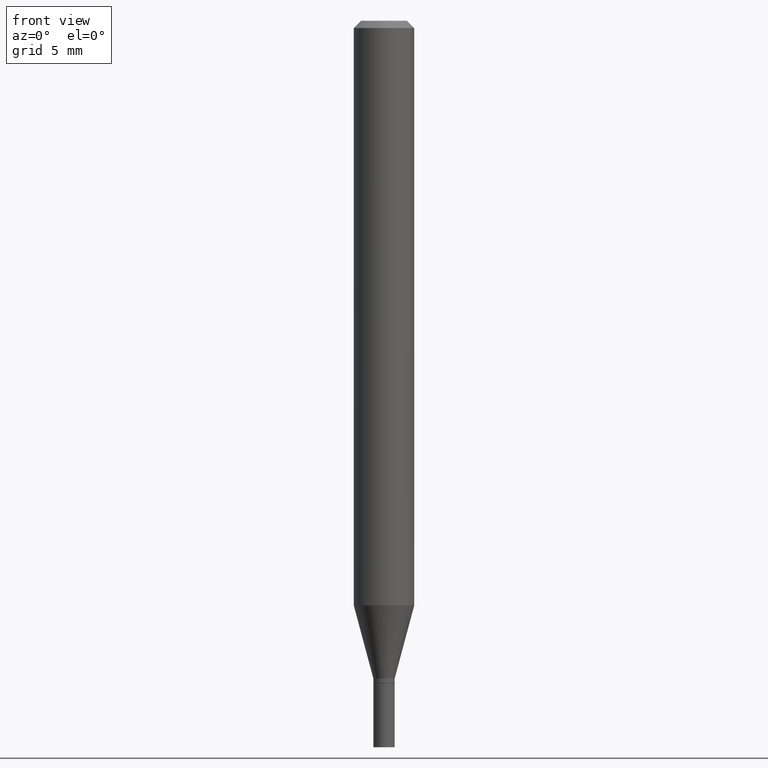
[diagram: clean part render]
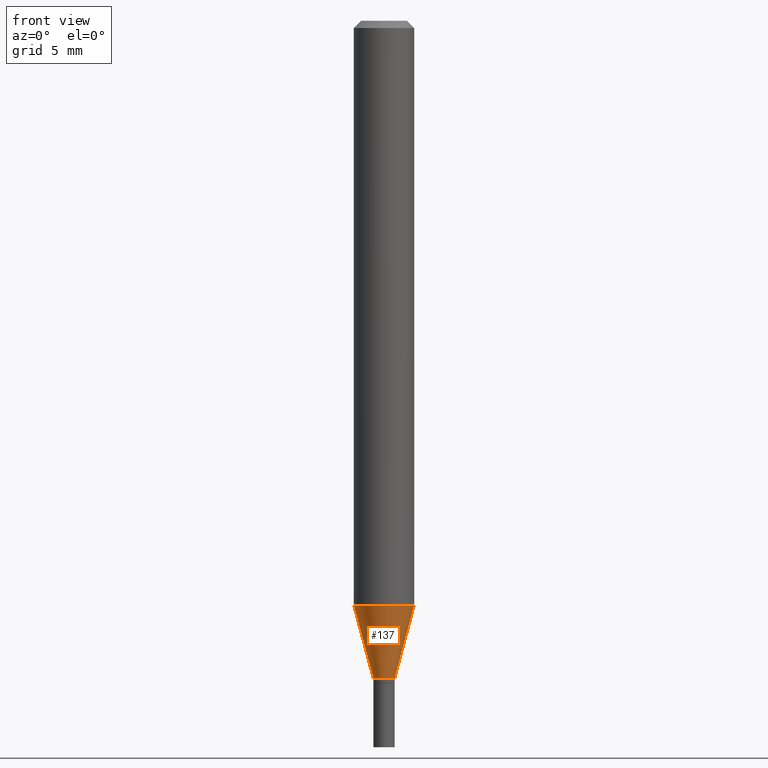
[diagram: same view with one face highlighted and labeled with its STEP entity id]
A machine part, front view. The second image highlights one B-rep face of the part: STEP entity #137.
In plain terms, the highlighted conical surface has half-angle 15 deg.
Its self-contained STEP definition (entity closure, byte-faithful):
#30 = DIRECTION ( 'NONE',  ( 1.000000000000000000, -6.982962677686270655E-15, 0.000000000000000000 ) ) ;
#36 = DIRECTION ( 'NONE',  ( 1.000000000000000000, -6.982962677686269866E-15, 0.000000000000000000 ) ) ;
#49 = AXIS2_PLACEMENT_3D ( 'NONE', #61, #213, #36 ) ;
#55 = DIRECTION ( 'NONE',  ( -2.445468806185136597E-29, 3.491481338843145583E-15, 1.000000000000000000 ) ) ;
#60 = LINE ( 'NONE', #347, #236 ) ;
#61 = CARTESIAN_POINT ( 'NONE',  ( 3.320946638799415978E-29, -4.741431658148991442E-15, -1.358000000000000096 ) ) ;
#62 = CARTESIAN_POINT ( 'NONE',  ( -0.06250000000000000000, -3.769611825414159666E-15, -1.206851942293460711 ) ) ;
#63 = CARTESIAN_POINT ( 'NONE',  ( -0.02199999999999992240, -4.585112256281770051E-15, -1.358000000000000096 ) ) ;
#70 = CIRCLE ( 'NONE', #306, 0.06250000000000000000 ) ;
#75 = CIRCLE ( 'NONE', #389, 0.02199999999999992240 ) ;
#82 = CARTESIAN_POINT ( 'NONE',  ( 0.02199999999999992240, -4.895056837058089278E-15, -1.358000000000000096 ) ) ;
#102 = DIRECTION ( 'NONE',  ( -0.2588190451025213501, 5.211531920934551042E-15, 0.9659258262890682012 ) ) ;
#107 = CONICAL_SURFACE ( 'NONE', #49, 0.02199999999999992240, 0.2617993877991500740 ) ;
#135 = VERTEX_POINT ( 'NONE', #288 ) ;
#137 = ADVANCED_FACE ( 'NONE', ( #385 ), #107, .T. ) ;
#199 = DIRECTION ( 'NONE',  ( 1.000000000000000000, -6.982962677686269866E-15, 0.000000000000000000 ) ) ;
#208 = CARTESIAN_POINT ( 'NONE',  ( 2.951318778562602676E-29, -4.213701035264222282E-15, -1.206851942293460711 ) ) ;
#213 = DIRECTION ( 'NONE',  ( -2.445468806185136597E-29, 3.491481338843145583E-15, 1.000000000000000000 ) ) ;
#218 = EDGE_CURVE ( 'NONE', #135, #386, #280, .T. ) ;
#230 = VERTEX_POINT ( 'NONE', #331 ) ;
#231 = CARTESIAN_POINT ( 'NONE',  ( 3.320946638799415978E-29, -4.741431658148991442E-15, -1.358000000000000096 ) ) ;
#236 = VECTOR ( 'NONE', #341, 39.37007874015747433 ) ;
#265 = ORIENTED_EDGE ( 'NONE', *, *, #398, .F. ) ;
#274 = EDGE_CURVE ( 'NONE', #135, #428, #75, .T. ) ;
#280 = LINE ( 'NONE', #63, #358 ) ;
#283 = EDGE_LOOP ( 'NONE', ( #299, #451, #379, #265 ) ) ;
#288 = CARTESIAN_POINT ( 'NONE',  ( -0.02199999999999992240, -4.177362040847964858E-15, -1.358000000000000096 ) ) ;
#299 = ORIENTED_EDGE ( 'NONE', *, *, #218, .F. ) ;
#306 = AXIS2_PLACEMENT_3D ( 'NONE', #208, #344, #30 ) ;
#331 = CARTESIAN_POINT ( 'NONE',  ( 0.06250000000000000000, -4.650136202619614741E-15, -1.206851942293460711 ) ) ;
#336 = EDGE_CURVE ( 'NONE', #428, #230, #60, .T. ) ;
#341 = DIRECTION ( 'NONE',  ( 0.2588190451025213501, 1.565188264969621968E-15, 0.9659258262890682012 ) ) ;
#344 = DIRECTION ( 'NONE',  ( -2.445468806185136597E-29, 3.491481338843145583E-15, 1.000000000000000000 ) ) ;
#347 = CARTESIAN_POINT ( 'NONE',  ( 0.02199999999999992240, -4.895056837058089278E-15, -1.358000000000000096 ) ) ;
#358 = VECTOR ( 'NONE', #102, 39.37007874015747433 ) ;
#379 = ORIENTED_EDGE ( 'NONE', *, *, #336, .T. ) ;
#385 = FACE_OUTER_BOUND ( 'NONE', #283, .T. ) ;
#386 = VERTEX_POINT ( 'NONE', #62 ) ;
#389 = AXIS2_PLACEMENT_3D ( 'NONE', #231, #55, #199 ) ;
#398 = EDGE_CURVE ( 'NONE', #386, #230, #70, .T. ) ;
#428 = VERTEX_POINT ( 'NONE', #82 ) ;
#451 = ORIENTED_EDGE ( 'NONE', *, *, #274, .T. ) ;